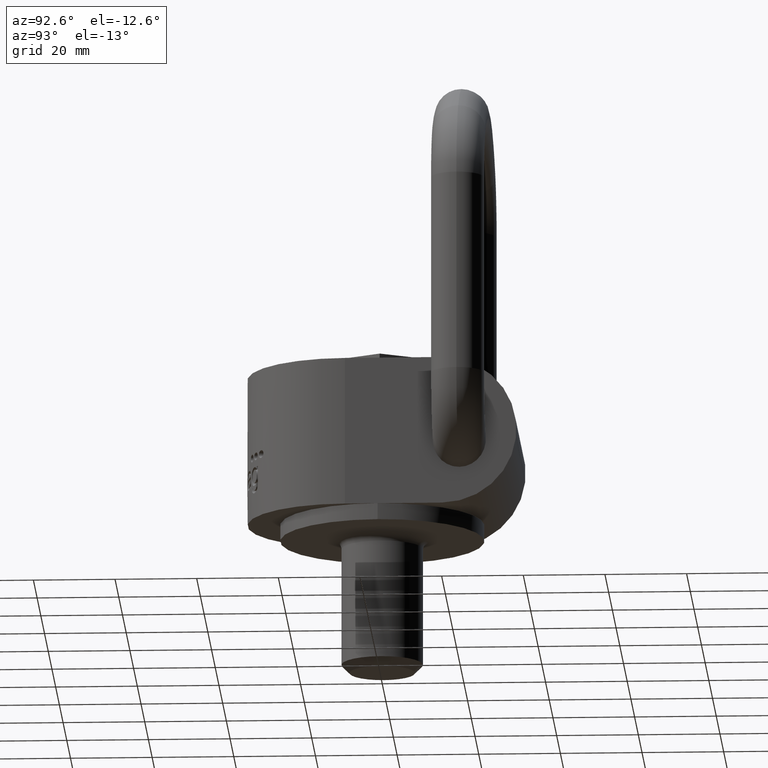
[diagram: clean part render]
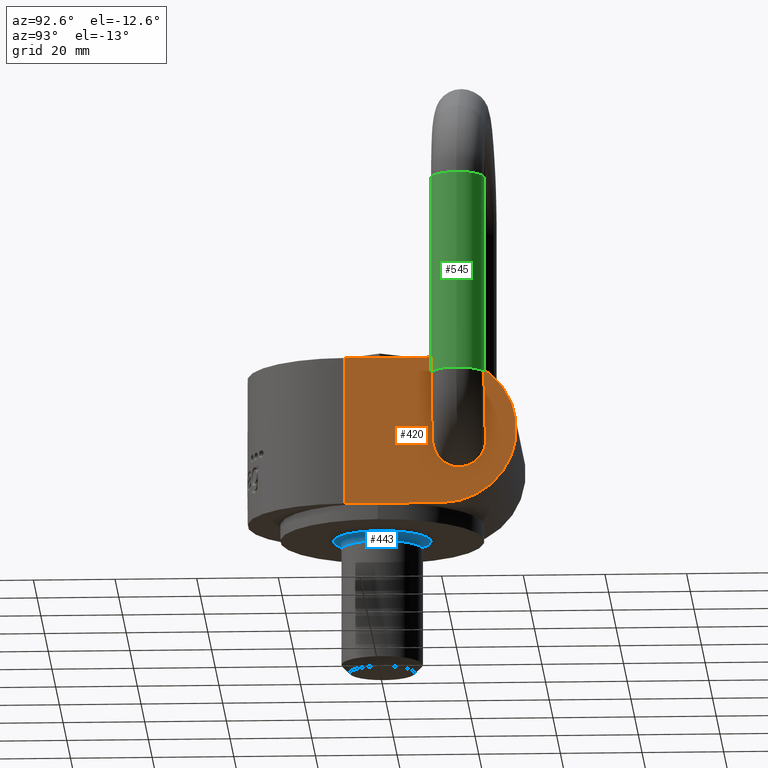
[diagram: same view with three faces highlighted in distinct colors, each labeled with its STEP entity id]
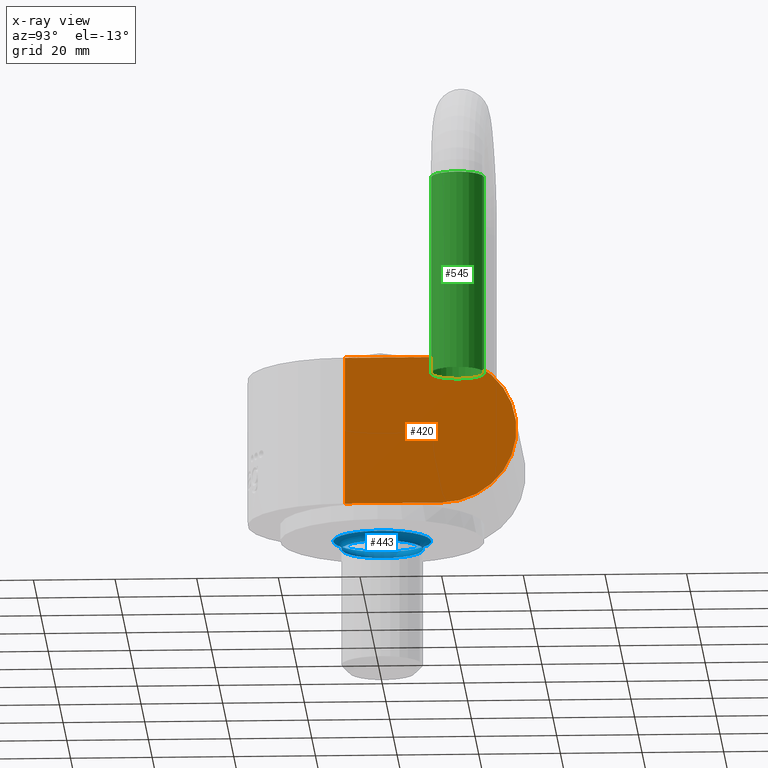
[diagram: x-ray of the same camera — body ghosted, the three highlighted faces saturated]
A machine part, auxiliary view with three faces highlighted in distinct colors.
The next image is the same camera in x-ray (body ghosted, the three faces saturated) — at least one of them is partly hidden behind the body in this view.
Their STEP definitions:

[orange] entity #420 — the highlighted planar face has unit normal (1, 0, 0).
#248=PLANE('',#2512);
#311=FACE_OUTER_BOUND('',#646,.T.);
#420=ADVANCED_FACE('',(#311),#248,.T.);
#646=EDGE_LOOP('',(#1238,#1239,#1240,#1241,#1242));
#799=LINE('',#3749,#930);
#803=LINE('',#3882,#934);
#806=LINE('',#3889,#937);
#811=LINE('',#3907,#942);
#930=VECTOR('',#2673,1.);
#934=VECTOR('',#2687,1.);
#937=VECTOR('',#2694,1.);
#942=VECTOR('',#2709,1.);
#1122=CIRCLE('',#2507,18.25);
#1238=ORIENTED_EDGE('',*,*,#2071,.T.);
#1239=ORIENTED_EDGE('',*,*,#2049,.T.);
#1240=ORIENTED_EDGE('',*,*,#2058,.T.);
#1241=ORIENTED_EDGE('',*,*,#2062,.T.);
#1242=ORIENTED_EDGE('',*,*,#2065,.T.);
#1834=VERTEX_POINT('',#3747);
#1836=VERTEX_POINT('',#3750);
#1843=VERTEX_POINT('',#3881);
#1845=VERTEX_POINT('',#3888);
#1848=VERTEX_POINT('',#3898);
#2049=EDGE_CURVE('',#1836,#1834,#799,.T.);
#2058=EDGE_CURVE('',#1834,#1843,#803,.T.);
#2062=EDGE_CURVE('',#1843,#1845,#806,.T.);
#2065=EDGE_CURVE('',#1845,#1848,#1122,.T.);
#2071=EDGE_CURVE('',#1848,#1836,#811,.T.);
#2507=AXIS2_PLACEMENT_3D('',#3899,#2698,#2699);
#2512=AXIS2_PLACEMENT_3D('',#3909,#2712,#2713);
#2673=DIRECTION('',(0.,1.90106682298828E-16,-1.));
#2687=DIRECTION('',(0.,1.,1.45752356053354E-16));
#2694=DIRECTION('',(0.,1.,1.45752356053354E-16));
#2698=DIRECTION('',(1.,0.,0.));
#2699=DIRECTION('',(0.,1.,0.));
#2709=DIRECTION('',(0.,-1.,0.));
#2712=DIRECTION('',(1.,0.,0.));
#2713=DIRECTION('',(0.,0.,-1.));
#3747=CARTESIAN_POINT('',(25.,-8.00000000000001,9.10952225333453E-17));
#3749=CARTESIAN_POINT('',(25.,-8.00000000000001,3.46944695195361E-15));
#3750=CARTESIAN_POINT('',(25.,-8.00000000000001,36.5));
#3881=CARTESIAN_POINT('',(25.,0.,6.69539461904587E-14));
#3882=CARTESIAN_POINT('',(25.,-33.,-3.5527136788005E-15));
#3888=CARTESIAN_POINT('',(25.,15.75,3.5527136788005E-15));
#3889=CARTESIAN_POINT('',(25.,-33.,-3.5527136788005E-15));
#3898=CARTESIAN_POINT('',(25.,15.75,36.5));
#3899=CARTESIAN_POINT('',(25.,15.75,18.25));
#3907=CARTESIAN_POINT('',(25.,15.75,36.5));
#3909=CARTESIAN_POINT('',(25.,15.75,18.25));

[blue] entity #443 — the highlighted toroidal blend (fillet) surface has major radius 12 mm and minor (blend) radius 2 mm.
#238=TOROIDAL_SURFACE('',#2542,12.,2.);
#443=ADVANCED_FACE('',(#598,#599),#238,.F.);
#598=FACE_BOUND('',#675,.T.);
#599=FACE_BOUND('',#676,.T.);
#675=EDGE_LOOP('',(#1336));
#676=EDGE_LOOP('',(#1337));
#1128=CIRCLE('',#2534,12.);
#1130=CIRCLE('',#2538,10.);
#1336=ORIENTED_EDGE('',*,*,#2111,.F.);
#1337=ORIENTED_EDGE('',*,*,#2113,.F.);
#1876=VERTEX_POINT('',#3994);
#1878=VERTEX_POINT('',#4000);
#2111=EDGE_CURVE('',#1876,#1876,#1128,.T.);
#2113=EDGE_CURVE('',#1878,#1878,#1130,.T.);
#2534=AXIS2_PLACEMENT_3D('',#3993,#2792,#2793);
#2538=AXIS2_PLACEMENT_3D('',#3999,#2800,#2801);
#2542=AXIS2_PLACEMENT_3D('',#4005,#2808,#2809);
#2792=DIRECTION('',(0.,0.,1.));
#2793=DIRECTION('',(-1.,0.,0.));
#2800=DIRECTION('',(0.,0.,-1.));
#2801=DIRECTION('',(-1.,0.,0.));
#2808=DIRECTION('',(0.,0.,-1.));
#2809=DIRECTION('',(-1.,0.,0.));
#3993=CARTESIAN_POINT('',(0.,0.,-3.99999999999993));
#3994=CARTESIAN_POINT('',(-12.,0.,-3.99999999999993));
#3999=CARTESIAN_POINT('',(0.,0.,-5.99999999999993));
#4000=CARTESIAN_POINT('',(-10.,0.,-5.99999999999993));
#4005=CARTESIAN_POINT('',(0.,0.,-5.99999999999993));

[green] entity #545 — the highlighted cylindrical surface (bore or boss wall) has radius 6.5 mm, axis along (0, 0, -1).
#545=ADVANCED_FACE('',(#630,#631),#563,.T.);
#563=CYLINDRICAL_SURFACE('',#2608,6.5);
#630=FACE_BOUND('',#793,.T.);
#631=FACE_BOUND('',#794,.T.);
#793=EDGE_LOOP('',(#1765));
#794=EDGE_LOOP('',(#1766));
#1134=CIRCLE('',#2594,6.5);
#1140=CIRCLE('',#2606,6.5);
#1765=ORIENTED_EDGE('',*,*,#2293,.F.);
#1766=ORIENTED_EDGE('',*,*,#2287,.T.);
#1974=VERTEX_POINT('',#5276);
#1980=VERTEX_POINT('',#5294);
#2287=EDGE_CURVE('',#1974,#1974,#1134,.T.);
#2293=EDGE_CURVE('',#1980,#1980,#1140,.T.);
#2594=AXIS2_PLACEMENT_3D('',#5275,#3035,#3036);
#2606=AXIS2_PLACEMENT_3D('',#5293,#3059,#3060);
#2608=AXIS2_PLACEMENT_3D('',#5296,#3063,#3064);
#3035=DIRECTION('',(1.84331036808373E-15,0.,1.));
#3036=DIRECTION('',(1.,0.,-1.60128320859398E-15));
#3059=DIRECTION('',(1.84331036808373E-15,0.,1.));
#3060=DIRECTION('',(1.,0.,-2.1350442781253E-15));
#3063=DIRECTION('',(0.,0.,-1.));
#3064=DIRECTION('',(-1.,0.,0.));
#5275=CARTESIAN_POINT('',(34.,20.,30.5));
#5276=CARTESIAN_POINT('',(40.5,20.,30.5));
#5293=CARTESIAN_POINT('',(34.,20.,79.4799919935936));
#5294=CARTESIAN_POINT('',(40.5,20.,79.4799919935936));
#5296=CARTESIAN_POINT('',(34.,20.,79.4799919935936));